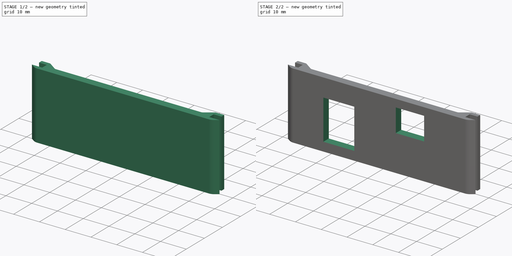
[diagram: build sequence overview — one tinted view per stage of 2, left to right]
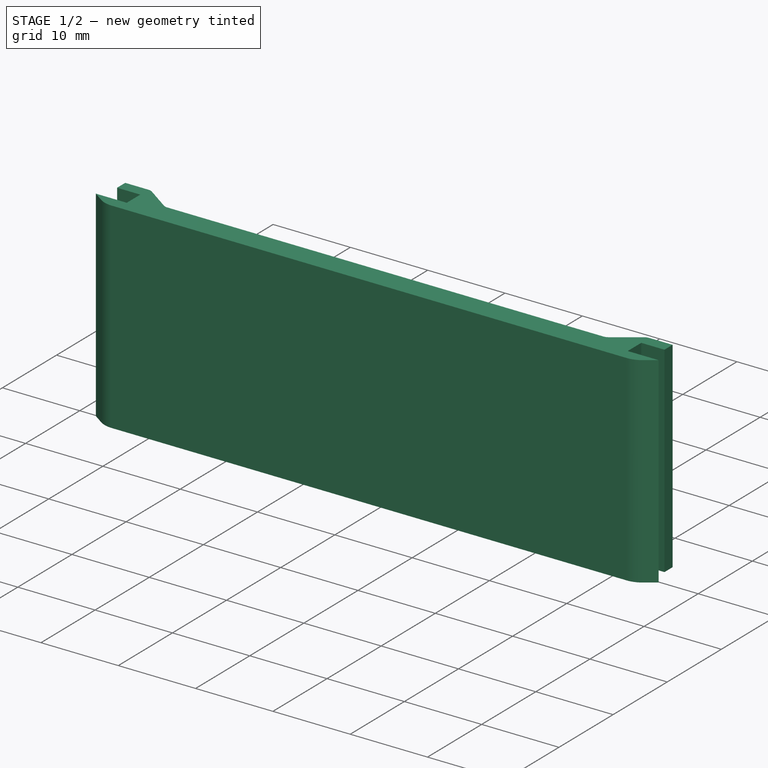
[diagram: stage 1 of 2 — iso view after this stage's code; geometry added in this stage tinted green]
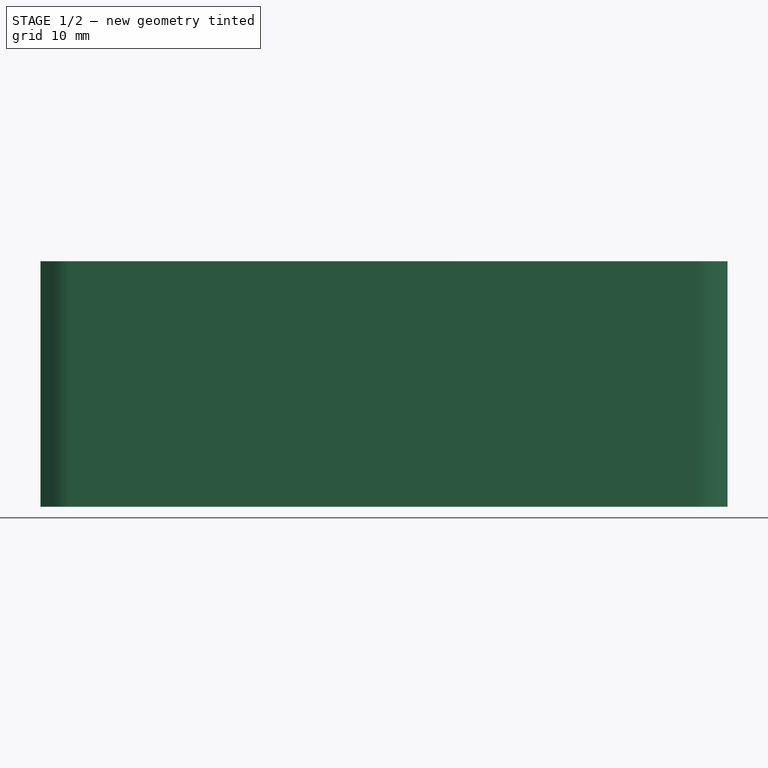
[diagram: stage 1 of 2 — front view after this stage's code; geometry added in this stage tinted green]
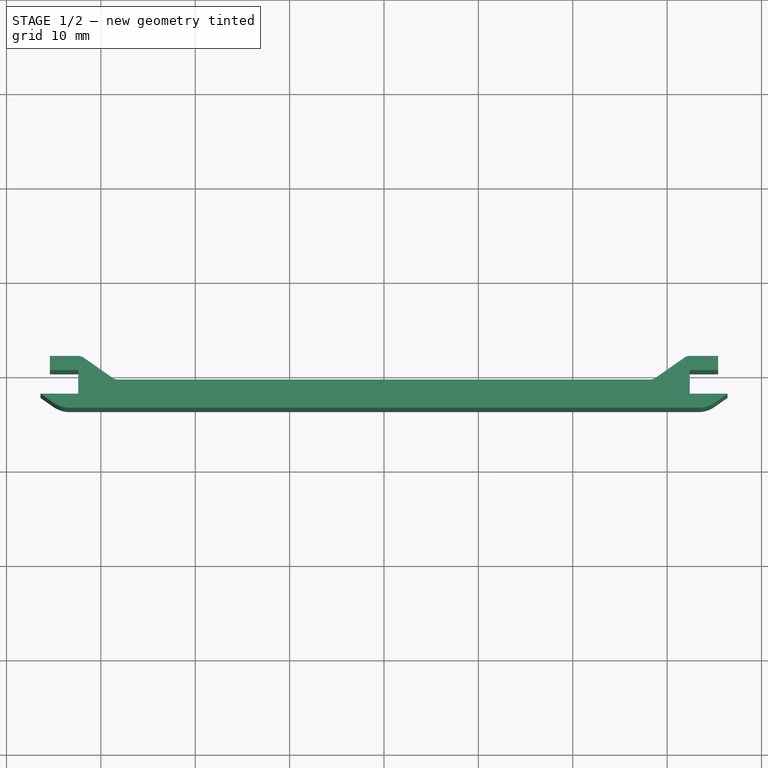
[diagram: stage 1 of 2 — top view after this stage's code; geometry added in this stage tinted green]
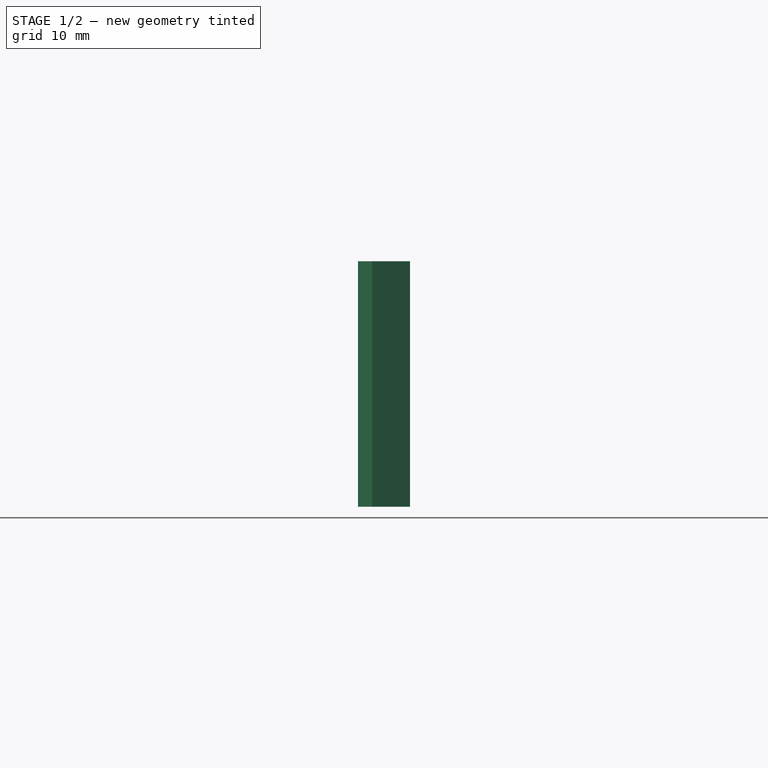
[diagram: stage 1 of 2 — right view after this stage's code; geometry added in this stage tinted green]
FCSTD DOCUMENT  (FreeCAD 0.16R6706 (Git))
Label: Box-002
License: All rights reserved
LicenseURL: http://en.wikipedia.org/wiki/All_rights_reserved
objects: Sketcher::SketchObject×3, PartDesign::Pad×1, PartDesign::Pocket×1
note: 7 computed .brp shape members not serialized (recipe doc carries the construction recipe); baked Part::Feature solids carry a one-line shape summary decoded from their .brp

FEATURE [Sketcher::SketchObject] Sketch  label="Carte"
  Placement = pos=(0,0,5) rot=(0,0,1;0rad)
  sketch-geometry (14):
    g0: LineSegment StartX=-37.5 StartY=37.5 StartZ=0 EndX=37.5 EndY=37.5 EndZ=0
    g1: LineSegment StartX=37.5 StartY=37.5 StartZ=0 EndX=37.5 EndY=-37.5 EndZ=0
    g2: LineSegment StartX=37.5 StartY=-37.5 StartZ=0 EndX=-37.5 EndY=-37.5 EndZ=0
    g3: LineSegment StartX=-37.5 StartY=-37.5 StartZ=0 EndX=-37.5 EndY=37.5 EndZ=0
    g4: Circle [constr] CenterX=0 CenterY=0 CenterZ=0 NormalX=0 NormalY=0 NormalZ=1 Radius=53.033
    g5: Circle CenterX=-32.5 CenterY=32.5 CenterZ=0 NormalX=0 NormalY=0 NormalZ=1 Radius=3.2
    g6: Circle CenterX=32.5 CenterY=32.5 CenterZ=0 NormalX=0 NormalY=0 NormalZ=1 Radius=3.2
    g7: Circle CenterX=32.5 CenterY=-32.5 CenterZ=0 NormalX=0 NormalY=0 NormalZ=1 Radius=3.2
    g8: Circle CenterX=-32.5 CenterY=-32.5 CenterZ=0 NormalX=0 NormalY=0 NormalZ=1 Radius=3.2
    g9: Circle [constr] CenterX=0 CenterY=0 CenterZ=0 NormalX=0 NormalY=0 NormalZ=1 Radius=45.9619
    g10: LineSegment [constr] StartX=-32.5 StartY=32.5 StartZ=0 EndX=32.5 EndY=32.5 EndZ=0
    g11: LineSegment [constr] StartX=32.5 StartY=32.5 StartZ=0 EndX=32.5 EndY=-32.5 EndZ=0
    g12: LineSegment [constr] StartX=32.5 StartY=-32.5 StartZ=0 EndX=-32.5 EndY=-32.5 EndZ=0
    g13: LineSegment [constr] StartX=-32.5 StartY=-32.5 StartZ=0 EndX=-32.5 EndY=32.5 EndZ=0
  constraints (36):
    c: Coincident(g0,g1)
    c: Coincident(g1,g2)
    c: Coincident(g2,g3)
    c: Coincident(g3,g0)
    c: Horizontal(g0)
    c: Horizontal(g2)
    c: Vertical(g1)
    c: Vertical(g3)
    c: DistanceX(g0,g0) = 75
    c: DistanceY(g1,g1) = 75
    c: Coincident(g4,g-1)
    c: PointOnObject(g0,g4)
    c: PointOnObject(g0,g4)
    c: PointOnObject(g1,g4)
    c: Radius(g5) = 3.2
    c: Equal(g5,g6)
    c: Equal(g5,g7)
    c: Equal(g5,g8)
    c: Coincident(g9,g-1)
    c: Coincident(g10,g11)
    c: Coincident(g11,g12)
    c: Coincident(g12,g13)
    c: Coincident(g13,g10)
    c: Horizontal(g10)
    c: Horizontal(g12)
    c: Vertical(g11)
    c: Vertical(g13)
    c: PointOnObject(g10,g9)
    c: PointOnObject(g11,g9)
    c: Equal(g10,g11)
    c: DistanceX(g10,g10) = 65
    c: PointOnObject(g10,g9)
    c: Coincident(g8,g12)
    c: Coincident(g7,g11)
    c: Coincident(g5,g10)
    c: Coincident(g6,g10)
FEATURE [Sketcher::SketchObject] Sketch008
  Placement = pos=(0,0,3) rot=(0,0,1;0rad)
  sketch-geometry (22):
    g0: LineSegment StartX=-35.4 StartY=-39.6597 StartZ=0 EndX=-32.4 EndY=-39.6597 EndZ=0
    g1: LineSegment StartX=-32.4 StartY=-39.6597 StartZ=0 EndX=-32.4 EndY=-42.1597 EndZ=0
    g2: LineSegment StartX=-32.4 StartY=-42.1597 StartZ=0 EndX=-36.4 EndY=-42.1597 EndZ=0
    g3: LineSegment StartX=-36.4 StartY=-42.1597 StartZ=0 EndX=-35.0326 EndY=-43.1172 EndZ=0
    g4: LineSegment StartX=-33.3119 StartY=-43.6597 StartZ=0 EndX=33.3119 EndY=-43.6597 EndZ=0
    g5: LineSegment StartX=35.0326 StartY=-43.1172 StartZ=0 EndX=36.4 EndY=-42.1597 EndZ=0
    g6: LineSegment StartX=36.4 StartY=-42.1597 StartZ=0 EndX=32.4 EndY=-42.1597 EndZ=0
    g7: LineSegment StartX=32.4 StartY=-42.1597 StartZ=0 EndX=32.4 EndY=-39.6597 EndZ=0
    g8: LineSegment StartX=32.4 StartY=-39.6597 StartZ=0 EndX=35.4 EndY=-39.6597 EndZ=0
    g9: LineSegment StartX=35.4 StartY=-39.6597 StartZ=0 EndX=35.4 EndY=-38.1597 EndZ=0
    g10: LineSegment StartX=-35.4 StartY=-38.1597 StartZ=0 EndX=-35.4 EndY=-39.6597 EndZ=0
    g11: ArcOfCircle CenterX=33.3119 CenterY=-40.6597 CenterZ=0 NormalX=0 NormalY=0 NormalZ=1 Radius=3 StartAngle=4.71239 EndAngle=5.32325
    g12: ArcOfCircle CenterX=-33.3119 CenterY=-40.6597 CenterZ=0 NormalX=0 NormalY=0 NormalZ=1 Radius=3 StartAngle=4.10152 EndAngle=4.71239
    g13: LineSegment StartX=-35.4 StartY=-38.1597 StartZ=0 EndX=-32.4 EndY=-38.1597 EndZ=0
    g14: LineSegment StartX=-31.8264 StartY=-38.3405 StartZ=0 EndX=-28.7726 EndY=-40.4789 EndZ=0
    g15: LineSegment StartX=-28.199 StartY=-40.6597 StartZ=0 EndX=28.199 EndY=-40.6597 EndZ=0
    g16: LineSegment StartX=28.7726 StartY=-40.4789 StartZ=0 EndX=31.8264 EndY=-38.3405 EndZ=0
    g17: LineSegment StartX=32.4 StartY=-38.1597 StartZ=0 EndX=35.4 EndY=-38.1597 EndZ=0
    g18: ArcOfCircle CenterX=-32.4 CenterY=-39.1597 CenterZ=0 NormalX=0 NormalY=0 NormalZ=1 Radius=1 StartAngle=0.959931 EndAngle=1.5708
    g19: ArcOfCircle CenterX=-28.199 CenterY=-39.6597 CenterZ=0 NormalX=0 NormalY=0 NormalZ=1 Radius=1 StartAngle=4.10152 EndAngle=4.71239
    g20: ArcOfCircle CenterX=28.199 CenterY=-39.6597 CenterZ=0 NormalX=0 NormalY=0 NormalZ=1 Radius=1 StartAngle=4.71239 EndAngle=5.32325
    g21: ArcOfCircle CenterX=32.4 CenterY=-39.1597 CenterZ=0 NormalX=0 NormalY=0 NormalZ=1 Radius=1 StartAngle=1.5708 EndAngle=2.18166
  constraints (60):
    c: Horizontal(g0)
    c: Coincident(g0,g1)
    c: Vertical(g1)
    c: Coincident(g1,g2)
    c: Horizontal(g2)
    c: Coincident(g2,g3)
    c: Horizontal(g4)
    c: Coincident(g5,g6)
    c: Horizontal(g6)
    c: Coincident(g6,g7)
    c: Vertical(g7)
    c: Coincident(g7,g8)
    c: Horizontal(g8)
    c: Coincident(g8,g9)
    c: Vertical(g9)
    c: Vertical(g10)
    c: Coincident(g0,g10)
    c: Equal(g9,g10)
    c: Equal(g3,g5)
    c: Equal(g7,g1)
    c: DistanceX(g7) = 32.4
    c: DistanceY(g7) = -39.6597
    c: DistanceX(g0,g7) = 64.8
    c: DistanceY(g9,g9) = 1.5
    c: DistanceY(g7,g7) = 2.5
    c: DistanceX(g6,g6) = 4
    c: Equal(g6,g2)
    c: Equal(g0,g8)
    c: Angle(g6,g5) = 0.610865
    c: Tangent(g5,g11) = -1.5708
    c: Tangent(g4,g11) = -1.5708
    c: Tangent(g3,g12) = -1.5708
    c: Tangent(g4,g12) = -1.5708
    c: Equal(g12,g11)
    c: Radius(g11) = 3
    c: DistanceY(g4,g5) = 1.5
    c: Coincident(g10,g13)
    c: Horizontal(g13)
    c: Horizontal(g15)
    c: Horizontal(g17)
    c: Coincident(g9,g17)
    c: Equal(g17,g13)
    c: Tangent(g13,g18) = 1.5708
    c: Tangent(g14,g18) = 1.5708
    c: Tangent(g14,g19) = -1.5708
    c: Tangent(g15,g19) = -1.5708
    c: Tangent(g15,g20) = -1.5708
    c: Tangent(g16,g20) = -1.5708
    c: Tangent(g16,g21) = 1.5708
    c: Tangent(g17,g21) = 1.5708
    c: Equal(g21,g20)
    c: Equal(g20,g18)
    c: Equal(g18,g19)
    c: Radius(g21) = 1
    c: DistanceX(g17,g17) = 3
    c: Angle(g16,g17) = 2.53073
    c: DistanceY(g4,g15) = 3
    c: Angle(g13,g14) = 2.53073
    c: Equal(g14,g16)
    c: Equal(g8,g17)
FEATURE [PartDesign::Pad] Pad
  Length = 26
  Length2 = 100
  Placement = pos=(0,0,3) rot=(0,0,1;0rad)
  Sketch = -> Sketch008
  Type = 0
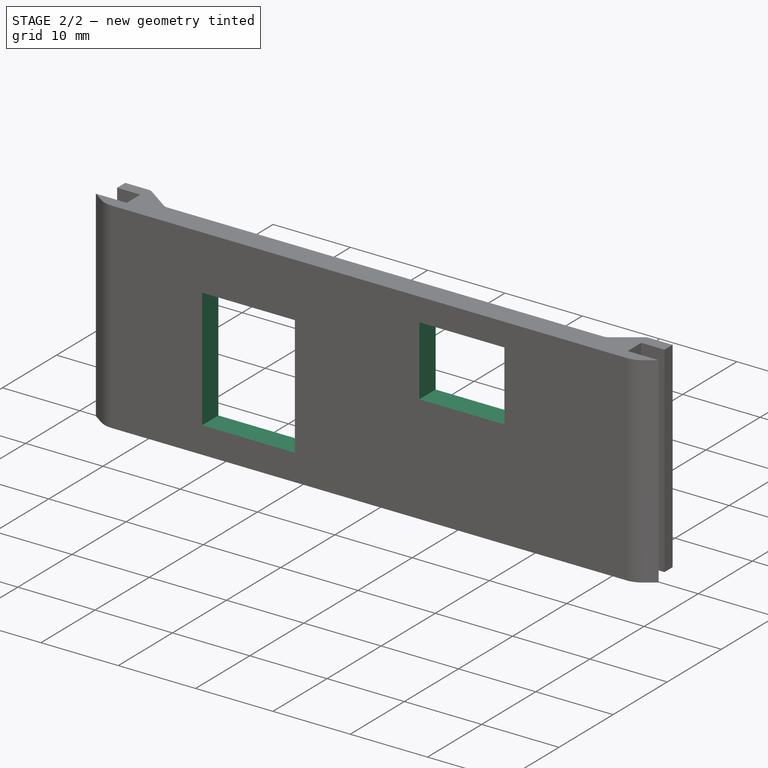
[diagram: stage 2 of 2 — iso view after this stage's code; geometry added in this stage tinted green]
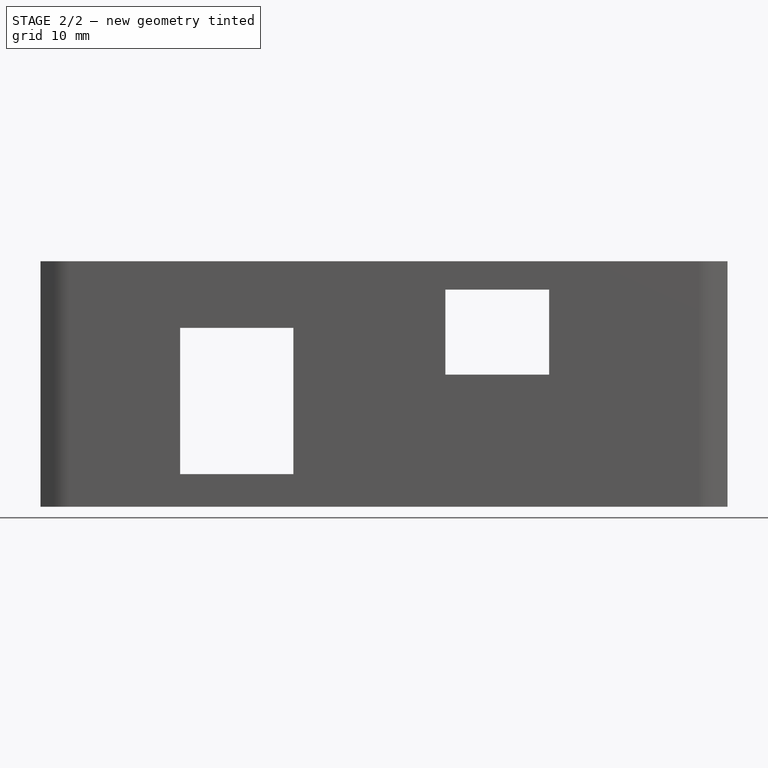
[diagram: stage 2 of 2 — front view after this stage's code; geometry added in this stage tinted green]
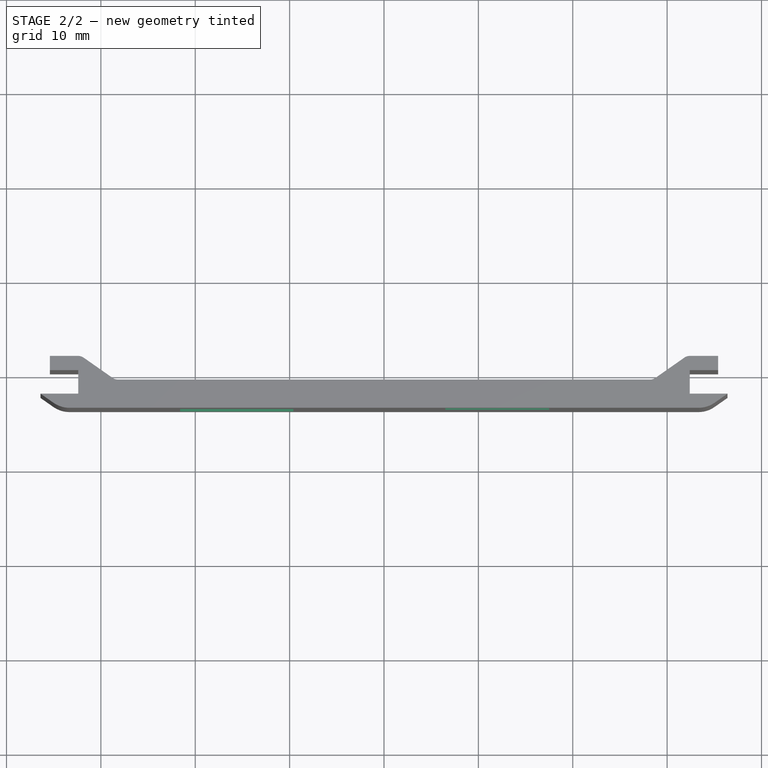
[diagram: stage 2 of 2 — top view after this stage's code; geometry added in this stage tinted green]
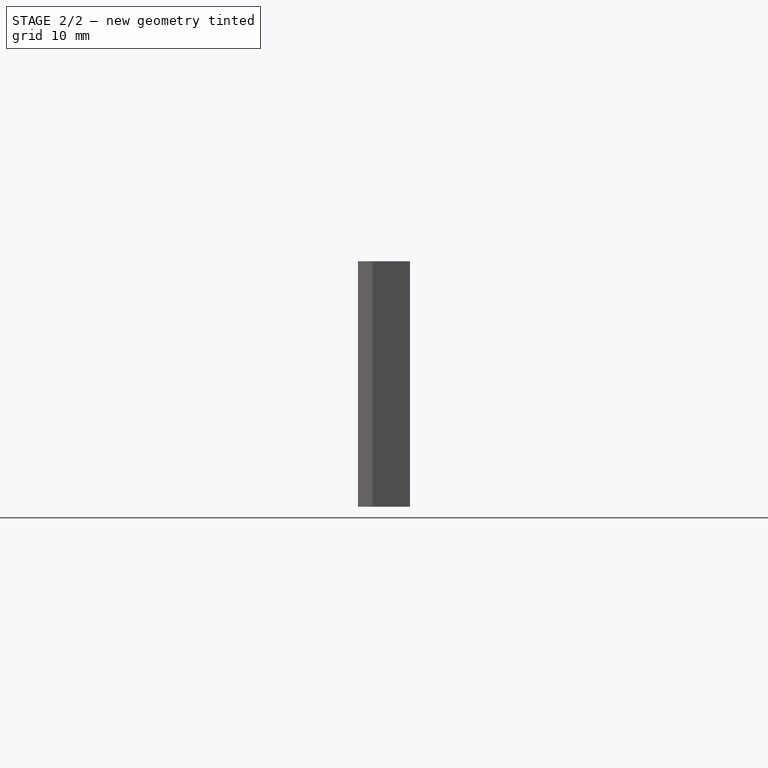
[diagram: stage 2 of 2 — right view after this stage's code; geometry added in this stage tinted green]
FEATURE [Sketcher::SketchObject] Sketch007  label="Trous-USB-ALIM"
  Placement = pos=(0,-43.6597,3) rot=(1,0,0;1.5708rad)
  Support = -> Pad [Face7]
  sketch-geometry (10):
    g0: LineSegment StartX=-21.6 StartY=18.95 StartZ=0 EndX=-9.6 EndY=18.95 EndZ=0
    g1: LineSegment StartX=-9.6 StartY=18.95 StartZ=0 EndX=-9.6 EndY=3.45 EndZ=0
    g2: LineSegment StartX=-9.6 StartY=3.45 StartZ=0 EndX=-21.6 EndY=3.45 EndZ=0
    g3: LineSegment StartX=-21.6 StartY=3.45 StartZ=0 EndX=-21.6 EndY=18.95 EndZ=0
    g4: LineSegment StartX=6.5 StartY=23 StartZ=0 EndX=17.5 EndY=23 EndZ=0
    g5: LineSegment StartX=17.5 StartY=23 StartZ=0 EndX=17.5 EndY=14 EndZ=0
    g6: LineSegment StartX=17.5 StartY=14 StartZ=0 EndX=6.5 EndY=14 EndZ=0
    g7: LineSegment StartX=6.5 StartY=14 StartZ=0 EndX=6.5 EndY=23 EndZ=0
    g8: Circle [constr] CenterX=-15.6 CenterY=11.2 CenterZ=0 NormalX=0 NormalY=0 NormalZ=1 Radius=9.80115
    g9: Circle [constr] CenterX=12 CenterY=18.5 CenterZ=0 NormalX=0 NormalY=0 NormalZ=1 Radius=7.10634
  constraints (30):
    c: Coincident(g0,g1)
    c: Coincident(g1,g2)
    c: Coincident(g2,g3)
    c: Coincident(g3,g0)
    c: Horizontal(g0)
    c: Horizontal(g2)
    c: Vertical(g1)
    c: Vertical(g3)
    c: Coincident(g4,g5)
    c: Coincident(g5,g6)
    c: Coincident(g6,g7)
    c: Coincident(g7,g4)
    c: Horizontal(g4)
    c: Horizontal(g6)
    c: Vertical(g5)
    c: Vertical(g7)
    c: DistanceX(g0,g0) = 12
    c: DistanceY(g1,g1) = 15.5
    c: DistanceX(g4,g4) = 11
    c: DistanceY(g5,g5) = 9
    c: PointOnObject(g4,g9)
    c: PointOnObject(g5,g9)
    c: PointOnObject(g4,g9)
    c: PointOnObject(g0,g8)
    c: PointOnObject(g0,g8)
    c: PointOnObject(g1,g8)
    c: DistanceX(g8) = -15.6
    c: DistanceY(g8) = 11.2
    c: DistanceX(g9) = 12
    c: DistanceY(g9) = 18.5
FEATURE [PartDesign::Pocket] Pocket
  Length = 5
  Placement = pos=(0,0,3) rot=(0,0,1;0rad)
  Sketch = -> Sketch007
  Type = 0
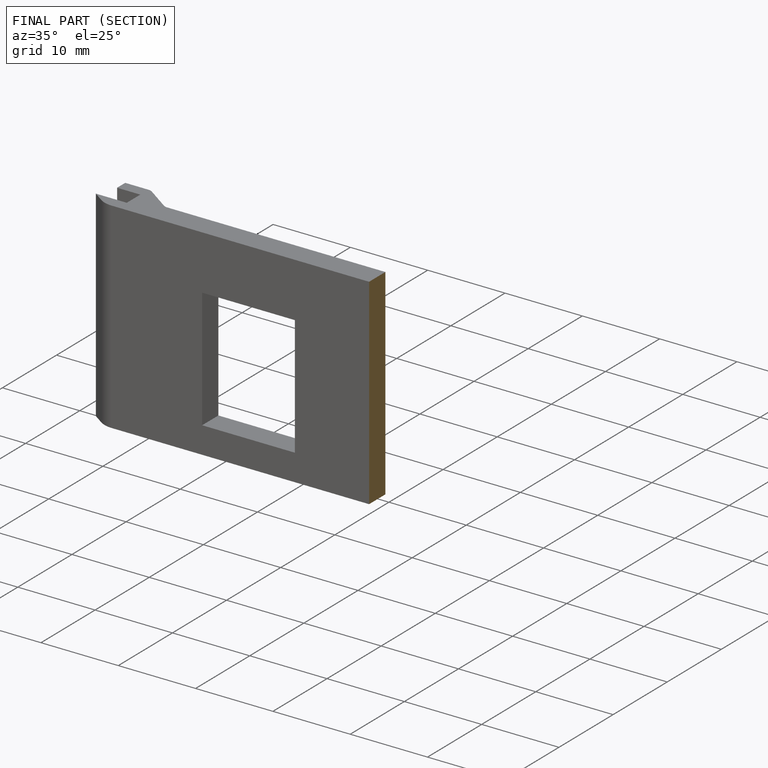
[diagram: finished part — half-section view (interior)]
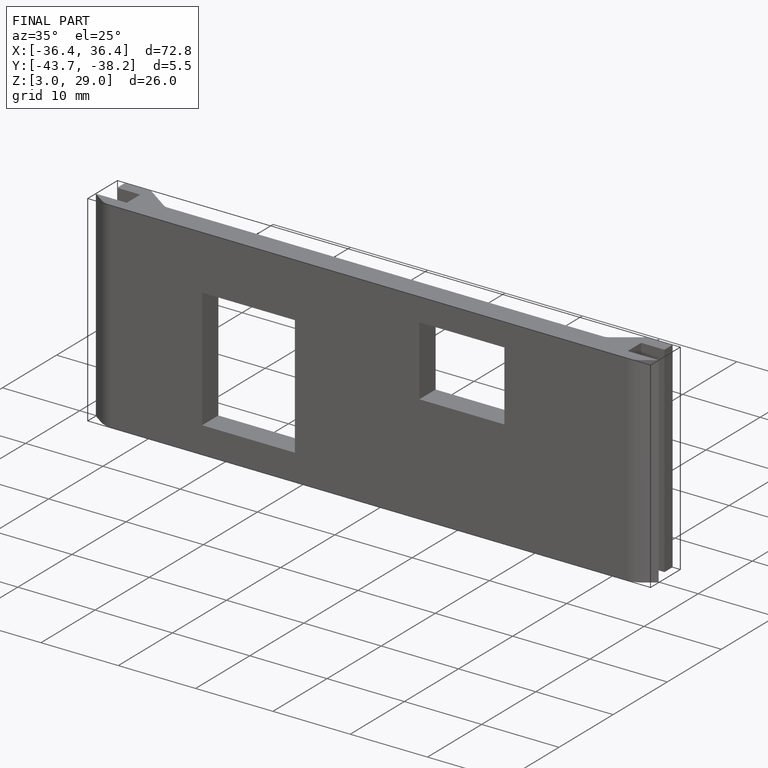
[diagram: finished part — iso view with bounding-box wireframe]
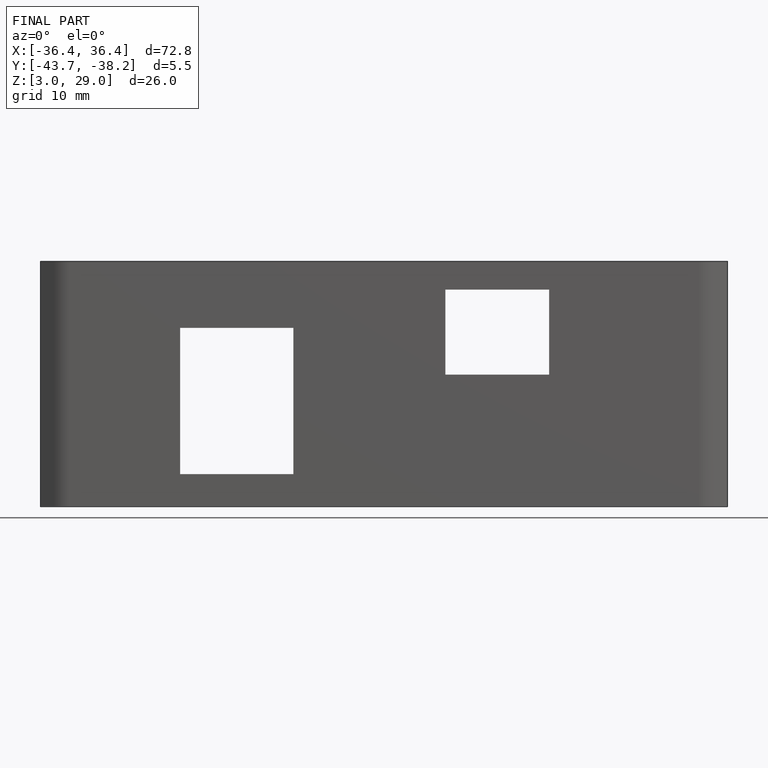
[diagram: finished part — front view with bounding-box wireframe]
